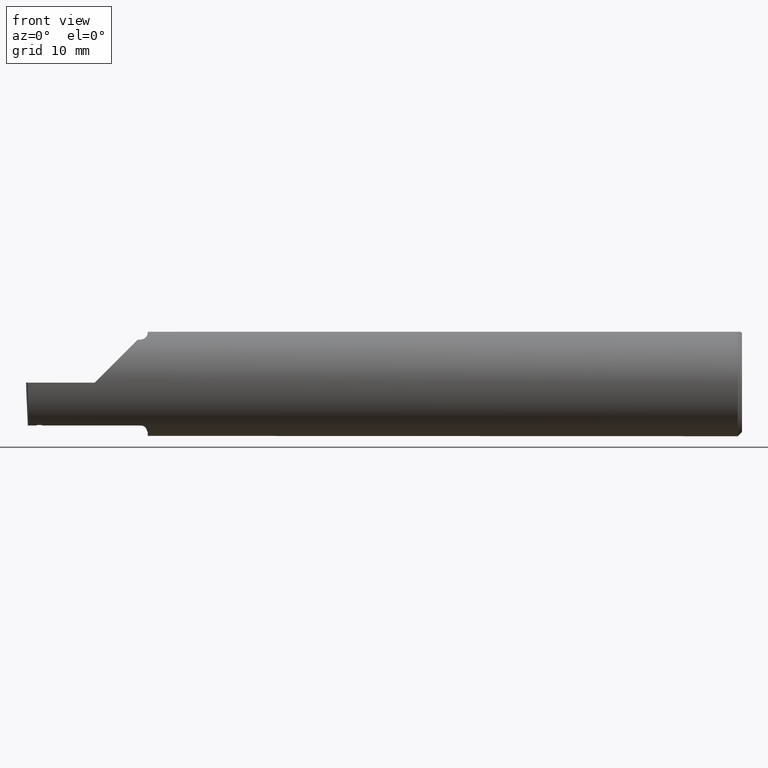
[diagram: clean part render]
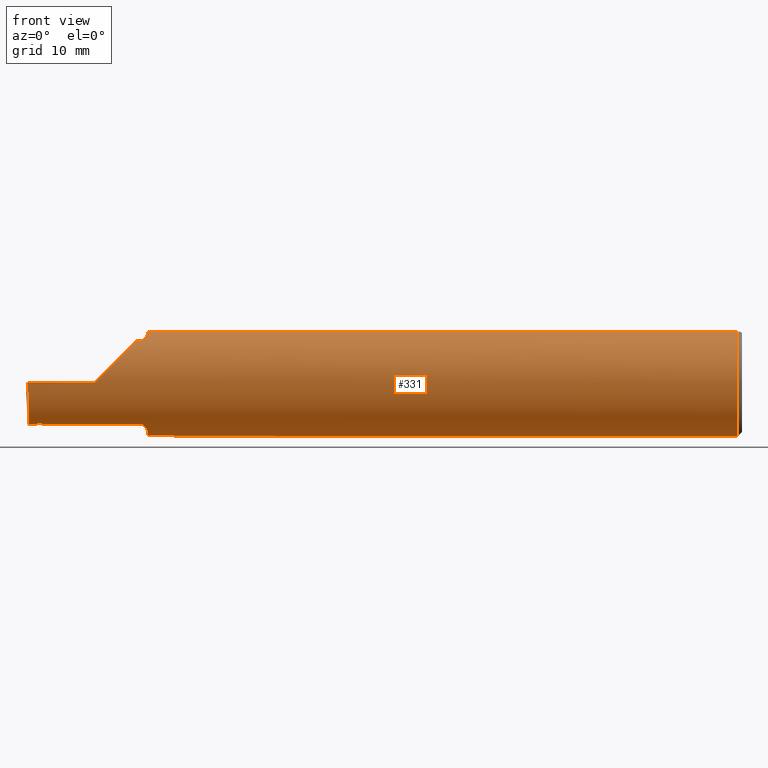
[diagram: same view with one face highlighted and labeled with its STEP entity id]
A machine part, front view. The second image highlights one B-rep face of the part: STEP entity #331.
In plain terms, the highlighted cylindrical surface (partial cylindrical patch) has radius 4.7587 mm, axis along (1, -0, -0).
Its self-contained STEP definition (entity closure, byte-faithful):
#6 = CARTESIAN_POINT ( 'NONE',  ( -2.277499999999999858, -0.1172600179964007477, -0.1461167706989302817 ) ) ;
#7 = ORIENTED_EDGE ( 'NONE', *, *, #202, .T. ) ;
#9 = DIRECTION ( 'NONE',  ( -1.000000000000000000, 0.000000000000000000, 0.000000000000000000 ) ) ;
#10 = EDGE_CURVE ( 'NONE', #87, #370, #352, .T. ) ;
#24 = CARTESIAN_POINT ( 'NONE',  ( -2.076829077486399555, -0.08839624499054647699, 0.1652742498708037744 ) ) ;
#25 = LINE ( 'NONE', #176, #439 ) ;
#34 = CARTESIAN_POINT ( 'NONE',  ( -2.464039528729736972, -0.1189754524816910713, -0.1447262341929363427 ) ) ;
#54 = CARTESIAN_POINT ( 'NONE',  ( -2.075000000000000178, 0.06039039658754216666, 0.1773499999999999799 ) ) ;
#72 = CARTESIAN_POINT ( 'NONE',  ( -2.443647039189707826, -0.1172600179964006784, -0.1461167706989303094 ) ) ;
#73 = AXIS2_PLACEMENT_3D ( 'NONE', #724, #77, #369 ) ;
#74 = EDGE_CURVE ( 'NONE', #375, #640, #25, .T. ) ;
#77 = DIRECTION ( 'NONE',  ( 1.000000000000000000, -4.493171042210958884E-17, -0.000000000000000000 ) ) ;
#83 = VERTEX_POINT ( 'NONE', #244 ) ;
#87 = VERTEX_POINT ( 'NONE', #818 ) ;
#89 = CYLINDRICAL_SURFACE ( 'NONE', #195, 0.1873499999999999888 ) ;
#99 = FACE_OUTER_BOUND ( 'NONE', #843, .T. ) ;
#107 = ORIENTED_EDGE ( 'NONE', *, *, #704, .T. ) ;
#113 = CARTESIAN_POINT ( 'NONE',  ( -2.075000000000000178, -0.06851976604679065053, 0.1743704796142198643 ) ) ;
#130 = CARTESIAN_POINT ( 'NONE',  ( -2.113883229301070532, -0.1172600179964006645, 0.1461167706989302539 ) ) ;
#136 = EDGE_CURVE ( 'NONE', #611, #909, #708, .T. ) ;
#138 = LINE ( 'NONE', #868, #452 ) ;
#139 = CARTESIAN_POINT ( 'NONE',  ( -2.450629942783126403, -0.1202905323675130395, -0.1436322050333429245 ) ) ;
#142 = LINE ( 'NONE', #286, #212 ) ;
#144 = DIRECTION ( 'NONE',  ( -1.000000000000000000, 0.000000000000000000, 0.000000000000000000 ) ) ;
#151 = VERTEX_POINT ( 'NONE', #701 ) ;
#153 = ORIENTED_EDGE ( 'NONE', *, *, #278, .T. ) ;
#155 = CARTESIAN_POINT ( 'NONE',  ( -2.083439486659307338, -0.1064616213911158960, -0.1542305641651499359 ) ) ;
#157 = ORIENTED_EDGE ( 'NONE', *, *, #512, .T. ) ;
#161 = CARTESIAN_POINT ( 'NONE',  ( -2.075000000000000178, 0.000000000000000000, 0.000000000000000000 ) ) ;
#167 = CARTESIAN_POINT ( 'NONE',  ( 0.000000000000000000, 0.000000000000000000, 0.000000000000000000 ) ) ;
#176 = CARTESIAN_POINT ( 'NONE',  ( 0.000000000000000000, 0.06039039658753697637, 0.1773499999999999799 ) ) ;
#184 = ORIENTED_EDGE ( 'NONE', *, *, #886, .T. ) ;
#195 = AXIS2_PLACEMENT_3D ( 'NONE', #167, #668, #243 ) ;
#196 = CARTESIAN_POINT ( 'NONE',  ( -2.075000000000000178, -0.06039039658753699025, 0.1773499999999999799 ) ) ;
#198 = VERTEX_POINT ( 'NONE', #508 ) ;
#202 = EDGE_CURVE ( 'NONE', #83, #408, #138, .T. ) ;
#205 = CARTESIAN_POINT ( 'NONE',  ( -2.090004157323697598, -0.1137044537483316159, 0.1489098419202428691 ) ) ;
#212 = VECTOR ( 'NONE', #711, 39.37007874015748143 ) ;
#222 = ORIENTED_EDGE ( 'NONE', *, *, #258, .T. ) ;
#223 = CARTESIAN_POINT ( 'NONE',  ( -2.445025619349034507, -0.1199521637390634637, -0.1439149085894748381 ) ) ;
#225 = CARTESIAN_POINT ( 'NONE',  ( -0.01499999999999997689, 0.000000000000000000, 0.000000000000000000 ) ) ;
#229 = CARTESIAN_POINT ( 'NONE',  ( -2.444567321465221710, -0.1190612593473730080, -0.1446574717506879937 ) ) ;
#231 = EDGE_CURVE ( 'NONE', #640, #869, #332, .T. ) ;
#243 = DIRECTION ( 'NONE',  ( 0.000000000000000000, 0.000000000000000000, 1.000000000000000000 ) ) ;
#244 = CARTESIAN_POINT ( 'NONE',  ( -0.01499999999999997689, -0.06039039658753697637, 0.1773499999999999799 ) ) ;
#249 = CARTESIAN_POINT ( 'NONE',  ( -2.493506715846705468, -0.1873499999999999888, 0.000000000000000000 ) ) ;
#250 = VERTEX_POINT ( 'NONE', #660 ) ;
#252 = CARTESIAN_POINT ( 'NONE',  ( -2.459970630616510778, -0.1208515442419981767, -0.1431604929941369120 ) ) ;
#258 = EDGE_CURVE ( 'NONE', #87, #739, #444, .T. ) ;
#259 = ORIENTED_EDGE ( 'NONE', *, *, #319, .T. ) ;
#264 = ORIENTED_EDGE ( 'NONE', *, *, #307, .T. ) ;
#272 = EDGE_CURVE ( 'NONE', #388, #725, #574, .T. ) ;
#278 = EDGE_CURVE ( 'NONE', #151, #198, #760, .T. ) ;
#279 = CARTESIAN_POINT ( 'NONE',  ( -2.454366191791422569, -0.1205154511845809295, -0.1434436126208497864 ) ) ;
#283 = DIRECTION ( 'NONE',  ( 0.000000000000000000, 0.000000000000000000, 1.000000000000000000 ) ) ;
#284 = CARTESIAN_POINT ( 'NONE',  ( -2.075358271039144498, -0.07873626113568084339, -0.1700887912276897174 ) ) ;
#286 = CARTESIAN_POINT ( 'NONE',  ( 0.000000000000000000, -0.1873499999999999888, 3.062657711647045301E-16 ) ) ;
#293 = CARTESIAN_POINT ( 'NONE',  ( -2.094511795768554396, -0.1163687266324235081, -0.1468371510166789073 ) ) ;
#298 = CARTESIAN_POINT ( 'NONE',  ( -2.075000000000000622, -0.07368234487347197215, -0.1723418180300748392 ) ) ;
#305 = CARTESIAN_POINT ( 'NONE',  ( -0.01499999999999751879, 0.06039039658754215278, 0.1773499999999999799 ) ) ;
#307 = EDGE_CURVE ( 'NONE', #408, #758, #546, .T. ) ;
#319 = EDGE_CURVE ( 'NONE', #739, #552, #380, .T. ) ;
#322 = CARTESIAN_POINT ( 'NONE',  ( -2.100000000000000089, -0.1172600179964006784, -0.1461167706989303094 ) ) ;
#329 = LINE ( 'NONE', #421, #901 ) ;
#331 = ADVANCED_FACE ( 'NONE', ( #99 ), #89, .T. ) ;
#332 = CIRCLE ( 'NONE', #750, 0.1873499999999999888 ) ;
#347 = VECTOR ( 'NONE', #483, 39.37007874015748143 ) ;
#351 = EDGE_CURVE ( 'NONE', #725, #375, #885, .T. ) ;
#352 =( BOUNDED_CURVE ( )  B_SPLINE_CURVE ( 3, ( #894, #753, #621, #249 ),
 .UNSPECIFIED., .F., .T. ) 
 B_SPLINE_CURVE_WITH_KNOTS ( ( 4, 4 ),
 ( 0.08839520912052888091, 0.9829226100289757406 ),
 .UNSPECIFIED. ) 
 CURVE ( )  GEOMETRIC_REPRESENTATION_ITEM ( )  RATIONAL_B_SPLINE_CURVE ( ( 1.000000000000000000, 0.9344226172588803170, 0.9344226172588803170, 1.000000000000000000 ) ) 
 REPRESENTATION_ITEM ( '' )  );
#353 = CARTESIAN_POINT ( 'NONE',  ( -2.083475602106621860, -0.1064978748893405658, 0.1542035505680383611 ) ) ;
#356 = CARTESIAN_POINT ( 'NONE',  ( -2.446893715973688987, -0.1200651732630455687, -0.1438207158678338204 ) ) ;
#369 = DIRECTION ( 'NONE',  ( 0.000000000000000000, 1.000000000000000000, 0.000000000000000000 ) ) ;
#370 = VERTEX_POINT ( 'NONE', #378 ) ;
#372 = EDGE_CURVE ( 'NONE', #758, #250, #784, .T. ) ;
#374 = CARTESIAN_POINT ( 'NONE',  ( -2.081304331342287650, -0.1022198306720690925, -0.1570962426853818039 ) ) ;
#375 = VERTEX_POINT ( 'NONE', #54 ) ;
#378 = CARTESIAN_POINT ( 'NONE',  ( -2.493506715846705468, -0.1873499999999999888, 0.000000000000000000 ) ) ;
#380 = B_SPLINE_CURVE_WITH_KNOTS ( 'NONE', 3,
 ( #656, #524, #34, #609, #532, #252 ),
 .UNSPECIFIED., .F., .F.,
 ( 4, 2, 4 ),
 ( 0.0002880341540451920217, 0.0003798726319059019647, 0.0004717111097666119076 ),
 .UNSPECIFIED. ) ;
#388 = VERTEX_POINT ( 'NONE', #499 ) ;
#401 = EDGE_CURVE ( 'NONE', #250, #909, #329, .T. ) ;
#405 = CARTESIAN_POINT ( 'NONE',  ( -2.465157082534517485, -0.1172600179964006784, -0.1461167706989302539 ) ) ;
#408 = VERTEX_POINT ( 'NONE', #196 ) ;
#414 = LINE ( 'NONE', #823, #347 ) ;
#421 = CARTESIAN_POINT ( 'NONE',  ( -2.277499999999999858, -0.1172600179964007477, 0.1461167706989302817 ) ) ;
#430 = CARTESIAN_POINT ( 'NONE',  ( -2.456234333133729741, -0.1206275801654830004, -0.1433492567243372096 ) ) ;
#433 = DIRECTION ( 'NONE',  ( 1.000000000000000000, -4.493171042210958884E-17, -0.000000000000000000 ) ) ;
#439 = VECTOR ( 'NONE', #526, 39.37007874015748143 ) ;
#442 = CARTESIAN_POINT ( 'NONE',  ( -2.113883229301070532, -0.1172600179964006645, 0.1461167706989302539 ) ) ;
#444 = LINE ( 'NONE', #6, #634 ) ;
#452 = VECTOR ( 'NONE', #144, 39.37007874015748143 ) ;
#463 = CARTESIAN_POINT ( 'NONE',  ( -2.260000000000000231, -0.1873499999999999888, 2.934602336944032870E-17 ) ) ;
#479 = CARTESIAN_POINT ( 'NONE',  ( -2.075000000000000178, -0.06851976604679065053, -0.1743704796142198643 ) ) ;
#483 = DIRECTION ( 'NONE',  ( 1.000000000000000000, -4.493171042210958884E-17, -0.000000000000000000 ) ) ;
#497 = CARTESIAN_POINT ( 'NONE',  ( -2.448761823781913982, -0.1201779628843176462, -0.1437264808474527644 ) ) ;
#499 = CARTESIAN_POINT ( 'NONE',  ( -2.100000000000000089, -0.1172600179964006784, -0.1461167706989303094 ) ) ;
#508 = CARTESIAN_POINT ( 'NONE',  ( -2.443647039189707826, -0.1172600179964006784, -0.1461167706989303094 ) ) ;
#512 = EDGE_CURVE ( 'NONE', #869, #83, #588, .T. ) ;
#515 = AXIS2_PLACEMENT_3D ( 'NONE', #650, #9, #283 ) ;
#516 = DIRECTION ( 'NONE',  ( 0.000000000000000000, 0.000000000000000000, 1.000000000000000000 ) ) ;
#524 = CARTESIAN_POINT ( 'NONE',  ( -2.464654264848855192, -0.1181371930991207547, -0.1454128298176820266 ) ) ;
#526 = DIRECTION ( 'NONE',  ( 1.000000000000000000, -0.000000000000000000, -0.000000000000000000 ) ) ;
#529 = CARTESIAN_POINT ( 'NONE',  ( -2.459970630616510778, -0.1208515442419981767, -0.1431604929941369120 ) ) ;
#532 = CARTESIAN_POINT ( 'NONE',  ( -2.461215914213424671, -0.1209260915574918716, -0.1430975625165445408 ) ) ;
#546 = CIRCLE ( 'NONE', #73, 0.1873499999999999888 ) ;
#548 = ORIENTED_EDGE ( 'NONE', *, *, #351, .T. ) ;
#552 = VERTEX_POINT ( 'NONE', #529 ) ;
#561 = ORIENTED_EDGE ( 'NONE', *, *, #136, .F. ) ;
#573 = CARTESIAN_POINT ( 'NONE',  ( -2.075000000000000178, -0.06851976604679065053, -0.1743704796142198643 ) ) ;
#574 = B_SPLINE_CURVE_WITH_KNOTS ( 'NONE', 3,
 ( #322, #716, #293, #646, #729, #155, #374, #864, #643, #284, #298, #573 ),
 .UNSPECIFIED., .F., .F.,
 ( 4, 2, 2, 2, 2, 4 ),
 ( 1.967976973658592312E-07, 0.0002120314145722268929, 0.0004238660314470878913, 0.0008475352651967990461, 0.001271204498946510147, 0.001694873732696221356 ),
 .UNSPECIFIED. ) ;
#578 = CARTESIAN_POINT ( 'NONE',  ( -2.444107737563205873, -0.1181638109593892566, -0.1453914687462651567 ) ) ;
#588 = CIRCLE ( 'NONE', #515, 0.1873499999999999888 ) ;
#596 = CARTESIAN_POINT ( 'NONE',  ( -2.075000000000000178, -0.06851976604679065053, 0.1743704796142198643 ) ) ;
#609 = CARTESIAN_POINT ( 'NONE',  ( -2.462366680899264360, -0.1203677650156516066, -0.1435703392140196266 ) ) ;
#611 = VERTEX_POINT ( 'NONE', #463 ) ;
#619 = DIRECTION ( 'NONE',  ( -1.000000000000000000, 4.493171042210958884E-17, 0.000000000000000000 ) ) ;
#621 = CARTESIAN_POINT ( 'NONE',  ( -2.491992669264299742, -0.1873499999999999888, -0.05781030015605114619 ) ) ;
#628 = CARTESIAN_POINT ( 'NONE',  ( -2.088163223656403389, -0.1119926267047277463, 0.1502091925606063305 ) ) ;
#629 = CARTESIAN_POINT ( 'NONE',  ( -2.202189699843949633, -0.1873500000000000998, 0.05781030015605104211 ) ) ;
#630 = ORIENTED_EDGE ( 'NONE', *, *, #372, .T. ) ;
#632 = CARTESIAN_POINT ( 'NONE',  ( -2.077945243422983701, -0.09312071749437424162, 0.1626553472577906279 ) ) ;
#634 = VECTOR ( 'NONE', #433, 39.37007874015748143 ) ;
#640 = VERTEX_POINT ( 'NONE', #305 ) ;
#643 = CARTESIAN_POINT ( 'NONE',  ( -2.076843912362377864, -0.08846956905169091334, -0.1652353808078971809 ) ) ;
#646 = CARTESIAN_POINT ( 'NONE',  ( -2.090028532764138358, -0.1137241120808236139, -0.1488947809299403513 ) ) ;
#650 = CARTESIAN_POINT ( 'NONE',  ( -0.01499999999999997689, 0.000000000000000000, 0.000000000000000000 ) ) ;
#656 = CARTESIAN_POINT ( 'NONE',  ( -2.465157082534517485, -0.1172600179964006784, -0.1461167706989302539 ) ) ;
#660 = CARTESIAN_POINT ( 'NONE',  ( -2.100000000000000089, -0.1172600179964007477, 0.1461167706989303094 ) ) ;
#668 = DIRECTION ( 'NONE',  ( 1.000000000000000000, -0.000000000000000000, -0.000000000000000000 ) ) ;
#672 = CARTESIAN_POINT ( 'NONE',  ( -2.074999999999999289, -0.07367581953296699349, 0.1723443821957854893 ) ) ;
#677 = DIRECTION ( 'NONE',  ( 1.000000000000000000, -4.493171042210958884E-17, -0.000000000000000000 ) ) ;
#701 = CARTESIAN_POINT ( 'NONE',  ( -2.445025619349034507, -0.1199521637390634637, -0.1439149085894748381 ) ) ;
#704 = EDGE_CURVE ( 'NONE', #198, #388, #414, .T. ) ;
#705 = CARTESIAN_POINT ( 'NONE',  ( -2.081287624083520527, -0.1021858045380145130, 0.1571187174372875861 ) ) ;
#708 =( BOUNDED_CURVE ( )  B_SPLINE_CURVE ( 3, ( #832, #629, #846, #130 ),
 .UNSPECIFIED., .F., .F. ) 
 B_SPLINE_CURVE_WITH_KNOTS ( ( 4, 4 ),
 ( 4.712388980384688786, 5.606916381293136631 ),
 .UNSPECIFIED. ) 
 CURVE ( )  GEOMETRIC_REPRESENTATION_ITEM ( )  RATIONAL_B_SPLINE_CURVE ( ( 1.000000000000000000, 0.9344226172588802060, 0.9344226172588802060, 1.000000000000000000 ) ) 
 REPRESENTATION_ITEM ( '' )  );
#711 = DIRECTION ( 'NONE',  ( 1.000000000000000000, -0.000000000000000000, -0.000000000000000000 ) ) ;
#716 = CARTESIAN_POINT ( 'NONE',  ( -2.097174967710399240, -0.1172600179964006784, -0.1461167706989303650 ) ) ;
#724 = CARTESIAN_POINT ( 'NONE',  ( -2.075000000000000178, 0.000000000000000000, 0.000000000000000000 ) ) ;
#725 = VERTEX_POINT ( 'NONE', #479 ) ;
#726 = B_SPLINE_CURVE_WITH_KNOTS ( 'NONE', 3,
 ( #783, #919, #923, #430, #279, #788, #139, #497, #356, #223 ),
 .UNSPECIFIED., .F., .F.,
 ( 4, 3, 3, 4 ),
 ( 2.784015005631585300E-17, 9.519312269084640951E-05, 0.0002379828151243503409, 0.0003807725157308754649 ),
 .UNSPECIFIED. ) ;
#729 = CARTESIAN_POINT ( 'NONE',  ( -2.088203859946834218, -0.1120371980050639121, -0.1501764597936558754 ) ) ;
#735 = ORIENTED_EDGE ( 'NONE', *, *, #231, .T. ) ;
#739 = VERTEX_POINT ( 'NONE', #405 ) ;
#748 = ORIENTED_EDGE ( 'NONE', *, *, #401, .T. ) ;
#750 = AXIS2_PLACEMENT_3D ( 'NONE', #225, #798, #516 ) ;
#753 = CARTESIAN_POINT ( 'NONE',  ( -2.491063981715931686, -0.1623470442677541759, -0.1099340280425337851 ) ) ;
#758 = VERTEX_POINT ( 'NONE', #113 ) ;
#760 = B_SPLINE_CURVE_WITH_KNOTS ( 'NONE', 3,
 ( #860, #229, #578, #72 ),
 .UNSPECIFIED., .F., .F.,
 ( 4, 4 ),
 ( 6.133173666733496745E-19, 9.502270578082793167E-05 ),
 .UNSPECIFIED. ) ;
#783 = CARTESIAN_POINT ( 'NONE',  ( -2.459970630616510778, -0.1208515442419981767, -0.1431604929941369120 ) ) ;
#784 = B_SPLINE_CURVE_WITH_KNOTS ( 'NONE', 3,
 ( #596, #672, #877, #24, #632, #705, #353, #628, #205, #845, #910, #903 ),
 .UNSPECIFIED., .F., .F.,
 ( 4, 2, 2, 2, 2, 4 ),
 ( 4.423516731080786679E-05, 0.0004615475116586702708, 0.0008788598560065326477, 0.001296172200354395133, 0.001504828372528326267, 0.001713484544702257402 ),
 .UNSPECIFIED. ) ;
#788 = CARTESIAN_POINT ( 'NONE',  ( -2.452498061677415020, -0.1204031018442653922, -0.1435379292246290739 ) ) ;
#796 = AXIS2_PLACEMENT_3D ( 'NONE', #161, #677, #826 ) ;
#798 = DIRECTION ( 'NONE',  ( -1.000000000000000000, 0.000000000000000000, 0.000000000000000000 ) ) ;
#805 = EDGE_CURVE ( 'NONE', #370, #611, #142, .T. ) ;
#813 = ORIENTED_EDGE ( 'NONE', *, *, #10, .F. ) ;
#818 = CARTESIAN_POINT ( 'NONE',  ( -2.490903355898018923, -0.1172600179964007477, -0.1461167706989302817 ) ) ;
#823 = CARTESIAN_POINT ( 'NONE',  ( -2.277499999999999858, -0.1172600179964007477, -0.1461167706989302817 ) ) ;
#826 = DIRECTION ( 'NONE',  ( 0.000000000000000000, 1.000000000000000000, 0.000000000000000000 ) ) ;
#829 = ORIENTED_EDGE ( 'NONE', *, *, #805, .F. ) ;
#832 = CARTESIAN_POINT ( 'NONE',  ( -2.260000000000000231, -0.1873499999999999888, 2.934602336944032870E-17 ) ) ;
#843 = EDGE_LOOP ( 'NONE', ( #222, #259, #184, #153, #107, #878, #548, #875, #735, #157, #7, #264, #630, #748, #561, #829, #813 ) ) ;
#845 = CARTESIAN_POINT ( 'NONE',  ( -2.094481469043492528, -0.1163560528186165649, 0.1468472430636323101 ) ) ;
#846 = CARTESIAN_POINT ( 'NONE',  ( -2.150065971957467070, -0.1623470442677541759, 0.1099340280425336880 ) ) ;
#852 = CARTESIAN_POINT ( 'NONE',  ( -0.01499999999999997689, 0.000000000000000000, -0.1873499999999999888 ) ) ;
#860 = CARTESIAN_POINT ( 'NONE',  ( -2.445025619349034507, -0.1199521637390634637, -0.1439149085894748381 ) ) ;
#864 = CARTESIAN_POINT ( 'NONE',  ( -2.077960551809340473, -0.09317341542745748162, -0.1626248379125196930 ) ) ;
#868 = CARTESIAN_POINT ( 'NONE',  ( 0.000000000000000000, -0.06039039658753697637, 0.1773499999999999799 ) ) ;
#869 = VERTEX_POINT ( 'NONE', #852 ) ;
#875 = ORIENTED_EDGE ( 'NONE', *, *, #74, .T. ) ;
#877 = CARTESIAN_POINT ( 'NONE',  ( -2.075353553376444893, -0.07868116735658677030, 0.1701139256562800572 ) ) ;
#878 = ORIENTED_EDGE ( 'NONE', *, *, #272, .T. ) ;
#885 = CIRCLE ( 'NONE', #796, 0.1873499999999999888 ) ;
#886 = EDGE_CURVE ( 'NONE', #552, #151, #726, .T. ) ;
#894 = CARTESIAN_POINT ( 'NONE',  ( -2.490903355898018923, -0.1172600179964007477, -0.1461167706989302817 ) ) ;
#901 = VECTOR ( 'NONE', #619, 39.37007874015748143 ) ;
#903 = CARTESIAN_POINT ( 'NONE',  ( -2.100000000000000089, -0.1172600179964007477, 0.1461167706989303094 ) ) ;
#909 = VERTEX_POINT ( 'NONE', #442 ) ;
#910 = CARTESIAN_POINT ( 'NONE',  ( -2.097161949849308371, -0.1172600179964061462, 0.1461167706989260351 ) ) ;
#919 = CARTESIAN_POINT ( 'NONE',  ( -2.458725193120458563, -0.1207769875284975258, -0.1432234314052287516 ) ) ;
#923 = CARTESIAN_POINT ( 'NONE',  ( -2.457479760626976706, -0.1207023328153187663, -0.1432863527967780659 ) ) ;